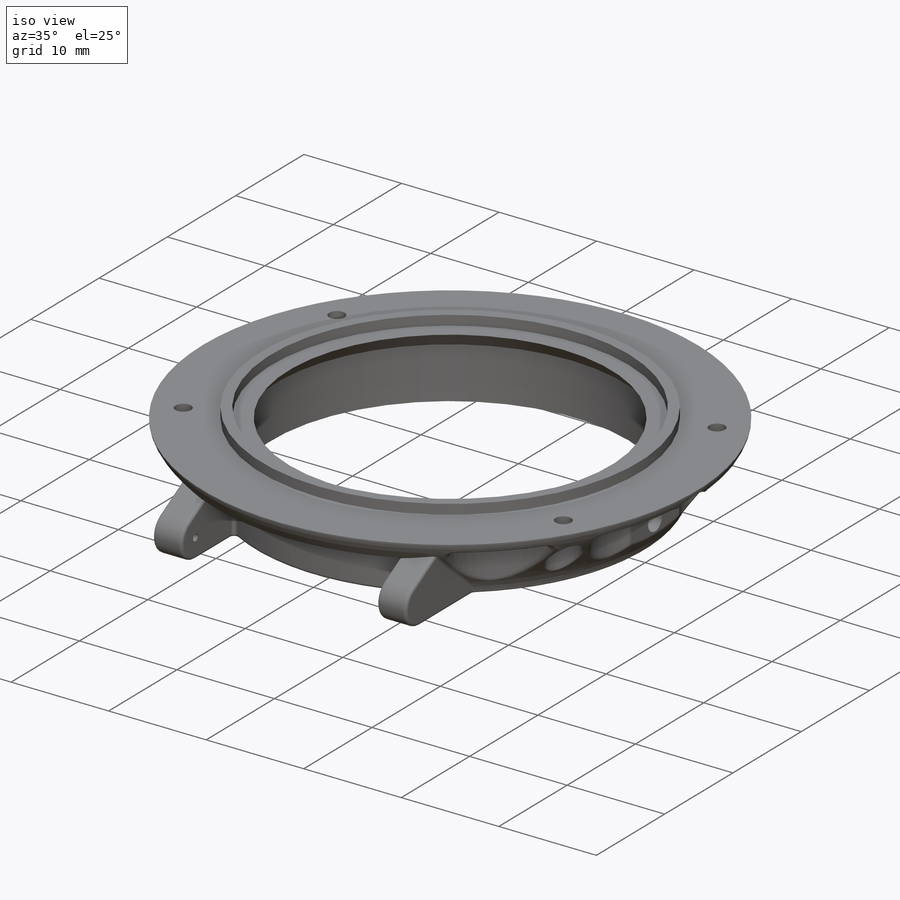
[diagram: iso view]
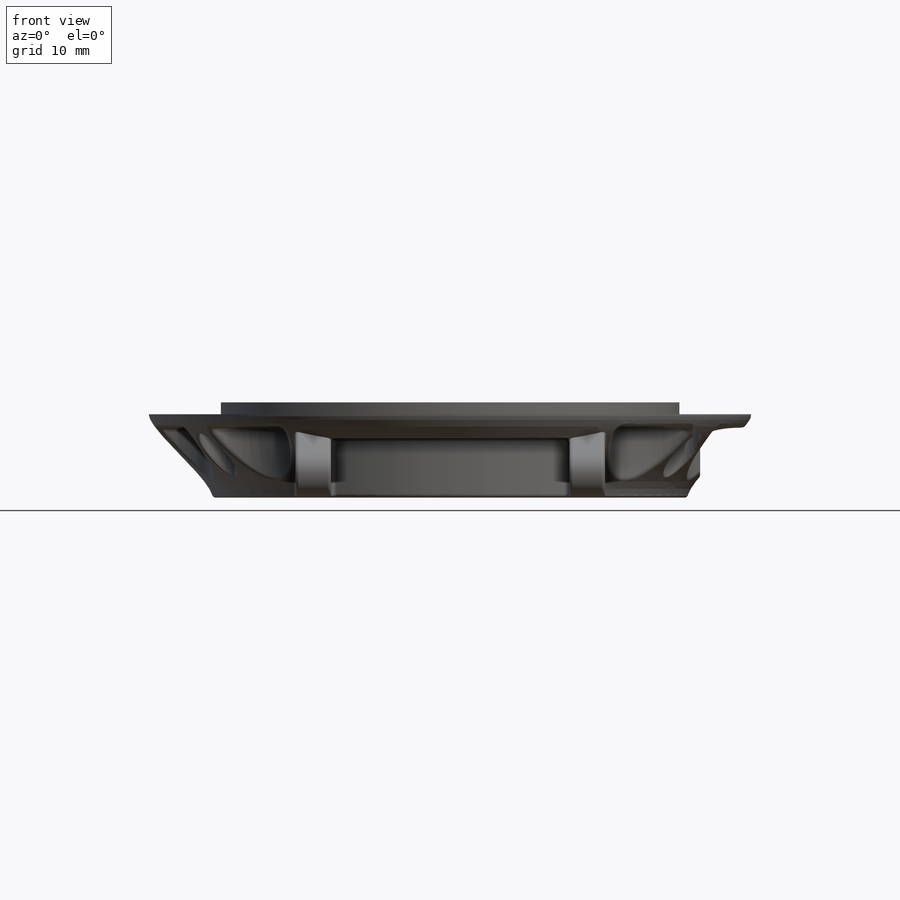
[diagram: front view]
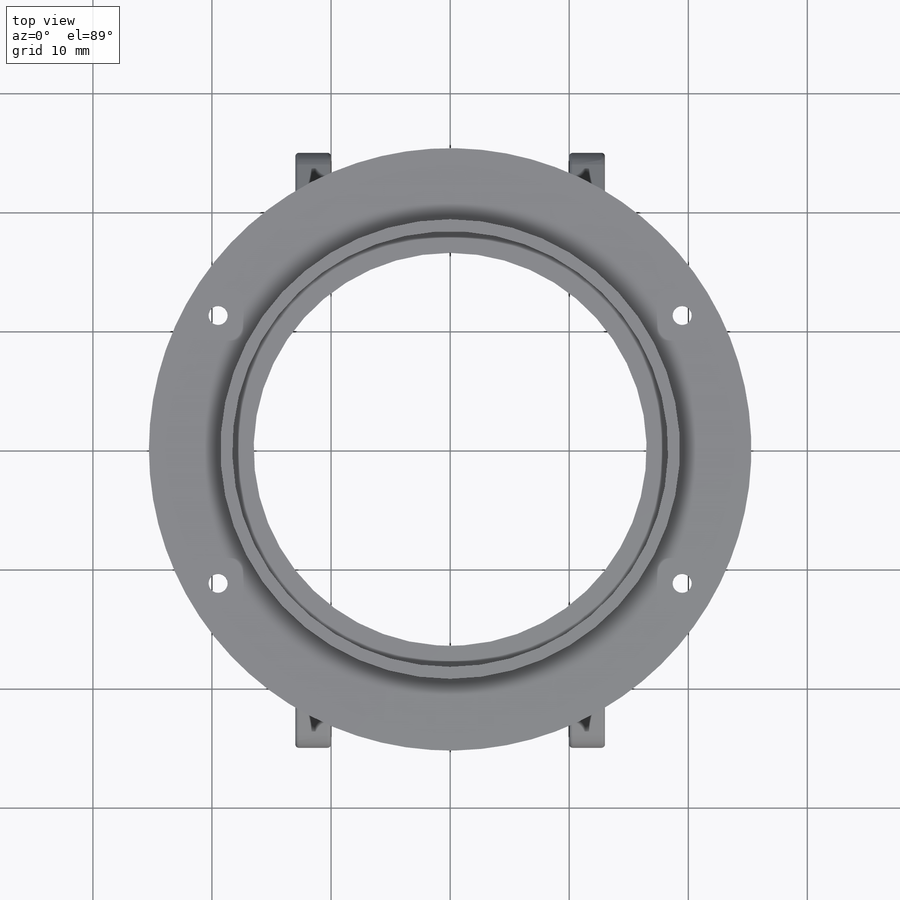
[diagram: top view]
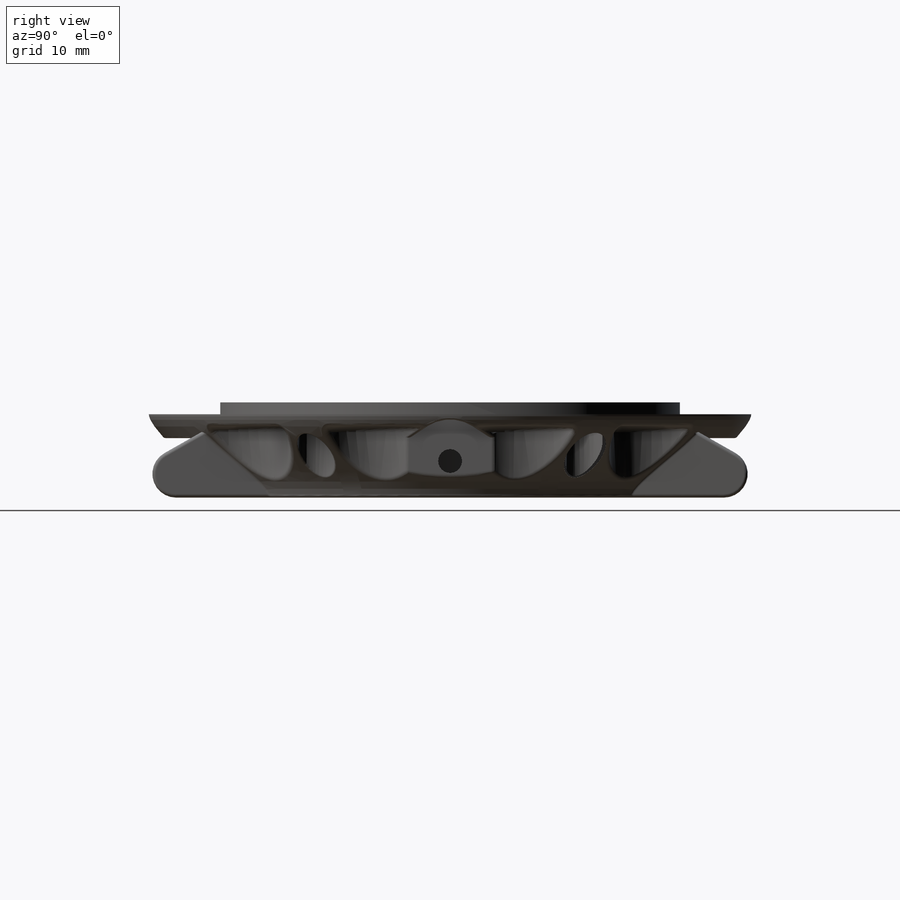
[diagram: right view]
SOLIDWORKS PART (.sldprt)
format: sldprt  version: not decoded by parser v0  size: 1,155,072 bytes
history: native  units: mm
features: sketch x10, fillet x10, cut_extrude x8, plane x2, mirror x2, pattern_circular x2, material x1, revolve x1, extrude x1 (+11 scaffold rows collapsed)
feature tree (48):
  scaffold x11  (default folders/planes/origin — collapsed)
  material  "Material <not specified>"
  sketch  "Sketch1"  dims[c1.D1=36.6mm c1.D2=7.0mm c1.D3=1.0mm c1.D4=7.0mm c2.D3=1.0mm c2.D5=0.5mm c2.D6=0.5mm c2.D7=4.5mm c3.D3=1.0mm c3.D5=1.0mm c3.D6=1.0mm c3.D7=5.0mm c4.D3=1.0mm c4.D5=1.0mm c4.D6=17.0mm c4.D7=1.5mm c4.D8=16.5mm c4.D9=0.5mm c5.D6=1.5mm]
  revolve  "Revolve1"  Angle=360deg
  sketch  "Sketch2"  dims[D1=2.0mm D2=3.94mm]
  cut_extrude  "Cut-Extrude1"  [1 undecoded]
  plane  "Plane1"  Offset=13mm
  sketch  "Sketch3"  dims[c1.D4=4.0mm c1.D1=4.0mm c1.D2=4.0mm c1.D3=~0.654601mm c2.D3=215.0deg c2.D4=1.0mm c2.D5=23.0mm c2.D1=14.5mm c2.D2=1.0mm c3.D3=20.0mm]
  extrude  "Boss-Extrude1"  Depth=3mm
  mirror  "Mirror1"
  sketch  "Sketch4"  dims[c1.D1=~0.692715mm c1.D2=~0.692715mm c2.D1=1.0mm c2.D2=1.0mm]
  sketch  "Sketch9"  dims[D1=3.0mm]
  cut_extrude  "Cut-Extrude4"  Depth=5mm
  cut_extrude  "Cut-Extrude6"  Depth=25mm
  mirror  "Mirror2"
  sketch  "Sketch10"
  cut_extrude  "Cut-Extrude5"  Depth=2mm
  sketch  "Sketch11"  dims[c1.D1=9.0mm c1.D2=25.3mm c2.D2=45.0deg]
  cut_extrude  "Cut-Extrude7"  Depth=6mm
  fillet  "Fillet2"  Radius=0.5mm
  pattern_circular  "CirPattern1"  Count=12 Angle=30deg
  fillet  "Fillet3"  Radius=0.3mm
  fillet  "Fillet5"  Radius=0.3mm
  fillet  "Fillet6"  Radius=0.3mm
  fillet  "Fillet7"  Radius=0.3mm
  fillet  "Fillet8"  Radius=0.3mm
  plane  "Plane2"  Offset=21mm
  sketch  "Sketch12"  dims[D1=7.0mm]
  cut_extrude  "Cut-Extrude8"  Depth=10mm
  fillet  "Fillet9"  Radius=0.2mm
  fillet  "Fillet10"  Radius=0.3mm
  fillet  "Fillet11"  Radius=0.5mm
  sketch  "Sketch13"  dims[c1.D1=45.0mm c1.D3=1.6mm c1.D2=~29.346913mm c2.D2=30.0deg]
  cut_extrude  "Cut-Extrude9"  [1 undecoded]
  sketch  "Sketch14"  dims[D1=3.1mm]
  cut_extrude  "Cut-Extrude10"  Depth=6mm
  fillet  "Fillet12"  Radius=0.2mm
  pattern_circular  "CirPattern2"  Count=12 Angle=360deg
decode coverage: 29 of 34 modeling features carry decoded parameters
note: ~ marks probable driven/reference dimensions
note: 2 parameter values undecoded
note: suppression state not decoded; provenance and decode notes live in map.json
